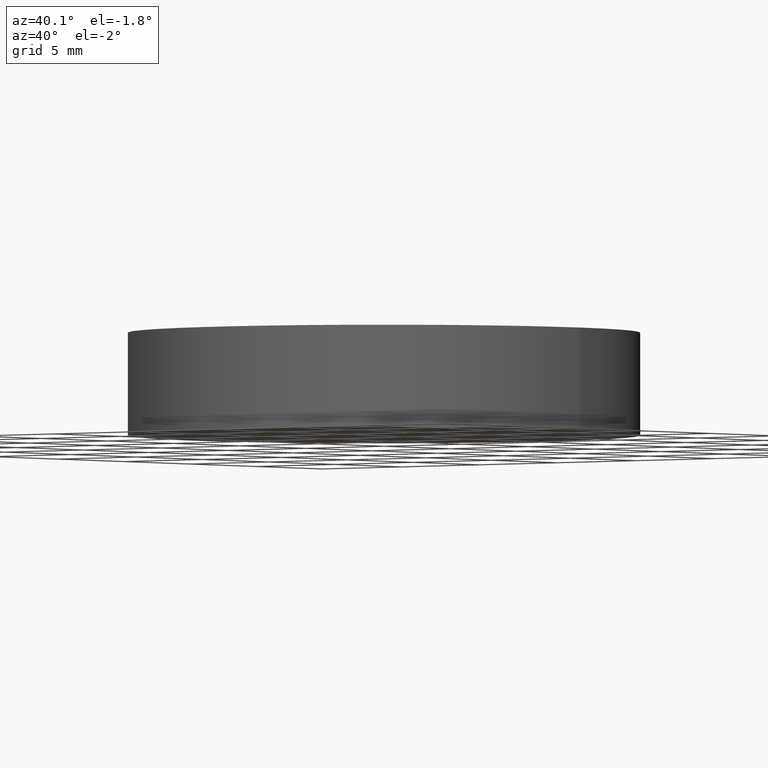
[diagram: clean part render]
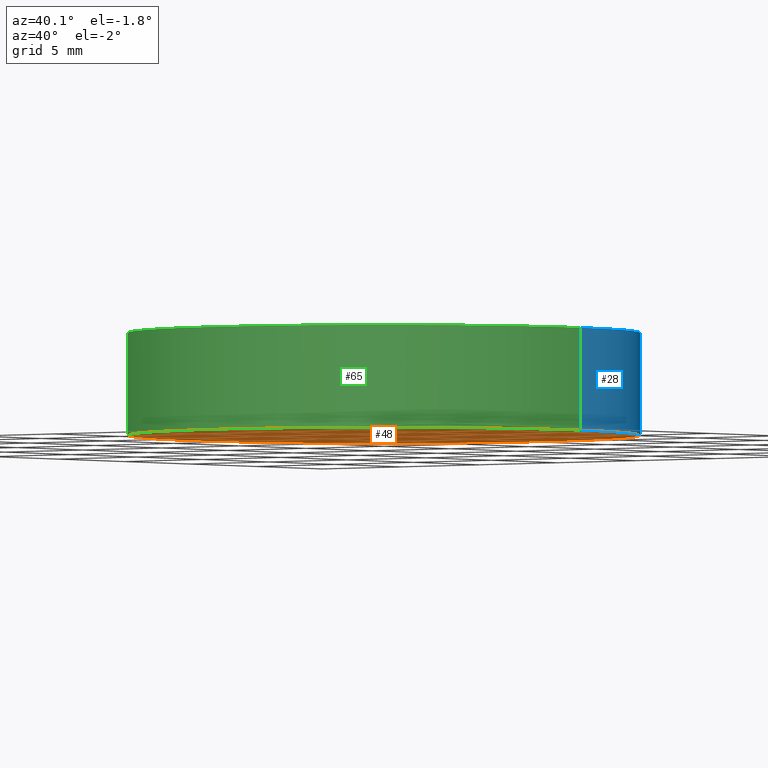
[diagram: same view with three faces highlighted in distinct colors, each labeled with its STEP entity id]
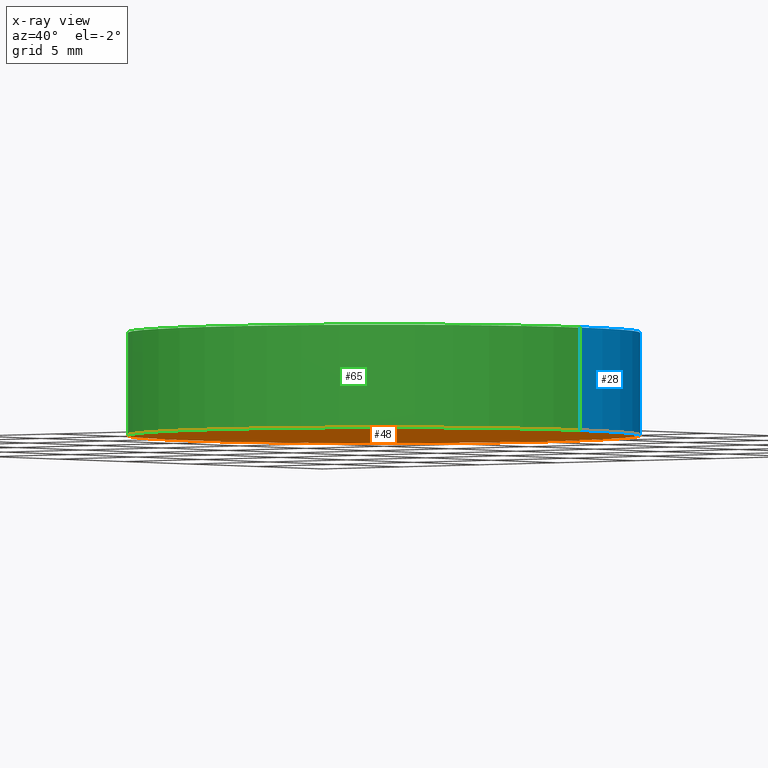
[diagram: x-ray of the same camera — body ghosted, the three highlighted faces saturated]
A machine part, auxiliary view with three faces highlighted in distinct colors.
The next image is the same camera in x-ray (body ghosted, the three faces saturated) — at least one of them is partly hidden behind the body in this view.
Their STEP definitions:

[orange] entity #48 — the highlighted planar face has unit normal (0, 0, 1).
#3 = CARTESIAN_POINT ( 'NONE',  ( 0.0000000000000000000, 0.0000000000000000000, 0.0000000000000000000 ) ) ;
#9 = FACE_OUTER_BOUND ( 'NONE', #43, .T. ) ;
#10 = DIRECTION ( 'NONE',  ( 1.000000000000000000, 0.0000000000000000000, 0.0000000000000000000 ) ) ;
#14 = DIRECTION ( 'NONE',  ( 0.0000000000000000000, 0.0000000000000000000, 1.000000000000000000 ) ) ;
#15 = DIRECTION ( 'NONE',  ( 0.0000000000000000000, 0.0000000000000000000, 1.000000000000000000 ) ) ;
#21 = EDGE_CURVE ( 'NONE', #90, #120, #46, .T. ) ;
#23 = CARTESIAN_POINT ( 'NONE',  ( 0.0000000000000000000, 0.0000000000000000000, 0.0000000000000000000 ) ) ;
#24 = CARTESIAN_POINT ( 'NONE',  ( -12.50000000000000000, 0.0000000000000000000, 0.0000000000000000000 ) ) ;
#36 = ORIENTED_EDGE ( 'NONE', *, *, #21, .F. ) ;
#41 = CARTESIAN_POINT ( 'NONE',  ( 0.0000000000000000000, 0.0000000000000000000, 0.0000000000000000000 ) ) ;
#43 = EDGE_LOOP ( 'NONE', ( #36, #63 ) ) ;
#45 = AXIS2_PLACEMENT_3D ( 'NONE', #23, #83, #10 ) ;
#46 = CIRCLE ( 'NONE', #69, 12.50000000000000000 ) ;
#48 = ADVANCED_FACE ( 'NONE', ( #9 ), #54, .F. ) ;
#49 = DIRECTION ( 'NONE',  ( 1.000000000000000000, 0.0000000000000000000, -0.0000000000000000000 ) ) ;
#54 = PLANE ( 'NONE',  #95 ) ;
#58 = CIRCLE ( 'NONE', #45, 12.50000000000000000 ) ;
#63 = ORIENTED_EDGE ( 'NONE', *, *, #119, .F. ) ;
#69 = AXIS2_PLACEMENT_3D ( 'NONE', #41, #15, #76 ) ;
#74 = CARTESIAN_POINT ( 'NONE',  ( 12.50000000000000000, 1.530808498934191500E-015, 0.0000000000000000000 ) ) ;
#76 = DIRECTION ( 'NONE',  ( 1.000000000000000000, 0.0000000000000000000, 0.0000000000000000000 ) ) ;
#83 = DIRECTION ( 'NONE',  ( 0.0000000000000000000, 0.0000000000000000000, 1.000000000000000000 ) ) ;
#90 = VERTEX_POINT ( 'NONE', #24 ) ;
#95 = AXIS2_PLACEMENT_3D ( 'NONE', #3, #14, #49 ) ;
#119 = EDGE_CURVE ( 'NONE', #120, #90, #58, .T. ) ;
#120 = VERTEX_POINT ( 'NONE', #74 ) ;

[blue] entity #28 — the highlighted cylindrical surface (partial cylindrical patch) has radius 12.5 mm, axis along (-0, -0, -1).
#6 = FACE_OUTER_BOUND ( 'NONE', #97, .T. ) ;
#10 = DIRECTION ( 'NONE',  ( 1.000000000000000000, 0.0000000000000000000, 0.0000000000000000000 ) ) ;
#11 = DIRECTION ( 'NONE',  ( -0.0000000000000000000, -0.0000000000000000000, -1.000000000000000000 ) ) ;
#12 = CARTESIAN_POINT ( 'NONE',  ( 12.50000000000000000, 1.530808498934191500E-015, 5.000000000000000000 ) ) ;
#20 = LINE ( 'NONE', #12, #51 ) ;
#22 = DIRECTION ( 'NONE',  ( -0.0000000000000000000, -0.0000000000000000000, -1.000000000000000000 ) ) ;
#23 = CARTESIAN_POINT ( 'NONE',  ( 0.0000000000000000000, 0.0000000000000000000, 0.0000000000000000000 ) ) ;
#24 = CARTESIAN_POINT ( 'NONE',  ( -12.50000000000000000, 0.0000000000000000000, 0.0000000000000000000 ) ) ;
#25 = DIRECTION ( 'NONE',  ( -0.0000000000000000000, -0.0000000000000000000, -1.000000000000000000 ) ) ;
#26 = DIRECTION ( 'NONE',  ( 1.000000000000000000, 0.0000000000000000000, 0.0000000000000000000 ) ) ;
#27 = CARTESIAN_POINT ( 'NONE',  ( 0.0000000000000000000, 0.0000000000000000000, 5.000000000000000000 ) ) ;
#28 = ADVANCED_FACE ( 'NONE', ( #6 ), #78, .T. ) ;
#31 = AXIS2_PLACEMENT_3D ( 'NONE', #27, #22, #89 ) ;
#38 = CARTESIAN_POINT ( 'NONE',  ( -12.50000000000000000, 0.0000000000000000000, 5.000000000000000000 ) ) ;
#45 = AXIS2_PLACEMENT_3D ( 'NONE', #23, #83, #10 ) ;
#50 = CARTESIAN_POINT ( 'NONE',  ( 0.0000000000000000000, 0.0000000000000000000, 5.000000000000000000 ) ) ;
#51 = VECTOR ( 'NONE', #25, 1000.000000000000000 ) ;
#55 = LINE ( 'NONE', #38, #82 ) ;
#58 = CIRCLE ( 'NONE', #45, 12.50000000000000000 ) ;
#60 = ORIENTED_EDGE ( 'NONE', *, *, #124, .F. ) ;
#62 = EDGE_CURVE ( 'NONE', #103, #120, #20, .T. ) ;
#72 = VERTEX_POINT ( 'NONE', #111 ) ;
#74 = CARTESIAN_POINT ( 'NONE',  ( 12.50000000000000000, 1.530808498934191500E-015, 0.0000000000000000000 ) ) ;
#78 = CYLINDRICAL_SURFACE ( 'NONE', #31, 12.50000000000000000 ) ;
#82 = VECTOR ( 'NONE', #11, 1000.000000000000000 ) ;
#83 = DIRECTION ( 'NONE',  ( 0.0000000000000000000, 0.0000000000000000000, 1.000000000000000000 ) ) ;
#85 = CARTESIAN_POINT ( 'NONE',  ( 12.50000000000000000, 1.530808498934191500E-015, 5.000000000000000000 ) ) ;
#86 = AXIS2_PLACEMENT_3D ( 'NONE', #50, #88, #26 ) ;
#88 = DIRECTION ( 'NONE',  ( 0.0000000000000000000, 0.0000000000000000000, 1.000000000000000000 ) ) ;
#89 = DIRECTION ( 'NONE',  ( -1.000000000000000000, 0.0000000000000000000, 0.0000000000000000000 ) ) ;
#90 = VERTEX_POINT ( 'NONE', #24 ) ;
#91 = CIRCLE ( 'NONE', #86, 12.50000000000000000 ) ;
#97 = EDGE_LOOP ( 'NONE', ( #60, #134, #105, #139 ) ) ;
#102 = EDGE_CURVE ( 'NONE', #72, #90, #55, .T. ) ;
#103 = VERTEX_POINT ( 'NONE', #85 ) ;
#105 = ORIENTED_EDGE ( 'NONE', *, *, #119, .T. ) ;
#111 = CARTESIAN_POINT ( 'NONE',  ( -12.50000000000000000, 0.0000000000000000000, 5.000000000000000000 ) ) ;
#119 = EDGE_CURVE ( 'NONE', #120, #90, #58, .T. ) ;
#120 = VERTEX_POINT ( 'NONE', #74 ) ;
#124 = EDGE_CURVE ( 'NONE', #103, #72, #91, .T. ) ;
#134 = ORIENTED_EDGE ( 'NONE', *, *, #62, .T. ) ;
#139 = ORIENTED_EDGE ( 'NONE', *, *, #102, .F. ) ;

[green] entity #65 — the highlighted cylindrical surface (partial cylindrical patch) has radius 12.5 mm, axis along (-0, -0, -1).
#11 = DIRECTION ( 'NONE',  ( -0.0000000000000000000, -0.0000000000000000000, -1.000000000000000000 ) ) ;
#12 = CARTESIAN_POINT ( 'NONE',  ( 12.50000000000000000, 1.530808498934191500E-015, 5.000000000000000000 ) ) ;
#15 = DIRECTION ( 'NONE',  ( 0.0000000000000000000, 0.0000000000000000000, 1.000000000000000000 ) ) ;
#18 = ORIENTED_EDGE ( 'NONE', *, *, #62, .F. ) ;
#20 = LINE ( 'NONE', #12, #51 ) ;
#21 = EDGE_CURVE ( 'NONE', #90, #120, #46, .T. ) ;
#24 = CARTESIAN_POINT ( 'NONE',  ( -12.50000000000000000, 0.0000000000000000000, 0.0000000000000000000 ) ) ;
#25 = DIRECTION ( 'NONE',  ( -0.0000000000000000000, -0.0000000000000000000, -1.000000000000000000 ) ) ;
#34 = EDGE_LOOP ( 'NONE', ( #18, #84, #130, #135 ) ) ;
#38 = CARTESIAN_POINT ( 'NONE',  ( -12.50000000000000000, 0.0000000000000000000, 5.000000000000000000 ) ) ;
#39 = DIRECTION ( 'NONE',  ( -1.000000000000000000, 0.0000000000000000000, 0.0000000000000000000 ) ) ;
#41 = CARTESIAN_POINT ( 'NONE',  ( 0.0000000000000000000, 0.0000000000000000000, 0.0000000000000000000 ) ) ;
#42 = AXIS2_PLACEMENT_3D ( 'NONE', #127, #47, #110 ) ;
#46 = CIRCLE ( 'NONE', #69, 12.50000000000000000 ) ;
#47 = DIRECTION ( 'NONE',  ( 0.0000000000000000000, 0.0000000000000000000, 1.000000000000000000 ) ) ;
#51 = VECTOR ( 'NONE', #25, 1000.000000000000000 ) ;
#53 = DIRECTION ( 'NONE',  ( -0.0000000000000000000, -0.0000000000000000000, -1.000000000000000000 ) ) ;
#55 = LINE ( 'NONE', #38, #82 ) ;
#62 = EDGE_CURVE ( 'NONE', #103, #120, #20, .T. ) ;
#65 = ADVANCED_FACE ( 'NONE', ( #116 ), #123, .T. ) ;
#69 = AXIS2_PLACEMENT_3D ( 'NONE', #41, #15, #76 ) ;
#72 = VERTEX_POINT ( 'NONE', #111 ) ;
#74 = CARTESIAN_POINT ( 'NONE',  ( 12.50000000000000000, 1.530808498934191500E-015, 0.0000000000000000000 ) ) ;
#76 = DIRECTION ( 'NONE',  ( 1.000000000000000000, 0.0000000000000000000, 0.0000000000000000000 ) ) ;
#82 = VECTOR ( 'NONE', #11, 1000.000000000000000 ) ;
#84 = ORIENTED_EDGE ( 'NONE', *, *, #108, .F. ) ;
#85 = CARTESIAN_POINT ( 'NONE',  ( 12.50000000000000000, 1.530808498934191500E-015, 5.000000000000000000 ) ) ;
#90 = VERTEX_POINT ( 'NONE', #24 ) ;
#93 = AXIS2_PLACEMENT_3D ( 'NONE', #137, #53, #39 ) ;
#102 = EDGE_CURVE ( 'NONE', #72, #90, #55, .T. ) ;
#103 = VERTEX_POINT ( 'NONE', #85 ) ;
#108 = EDGE_CURVE ( 'NONE', #72, #103, #125, .T. ) ;
#110 = DIRECTION ( 'NONE',  ( 1.000000000000000000, 0.0000000000000000000, 0.0000000000000000000 ) ) ;
#111 = CARTESIAN_POINT ( 'NONE',  ( -12.50000000000000000, 0.0000000000000000000, 5.000000000000000000 ) ) ;
#116 = FACE_OUTER_BOUND ( 'NONE', #34, .T. ) ;
#120 = VERTEX_POINT ( 'NONE', #74 ) ;
#123 = CYLINDRICAL_SURFACE ( 'NONE', #93, 12.50000000000000000 ) ;
#125 = CIRCLE ( 'NONE', #42, 12.50000000000000000 ) ;
#127 = CARTESIAN_POINT ( 'NONE',  ( 0.0000000000000000000, 0.0000000000000000000, 5.000000000000000000 ) ) ;
#130 = ORIENTED_EDGE ( 'NONE', *, *, #102, .T. ) ;
#135 = ORIENTED_EDGE ( 'NONE', *, *, #21, .T. ) ;
#137 = CARTESIAN_POINT ( 'NONE',  ( 0.0000000000000000000, 0.0000000000000000000, 5.000000000000000000 ) ) ;